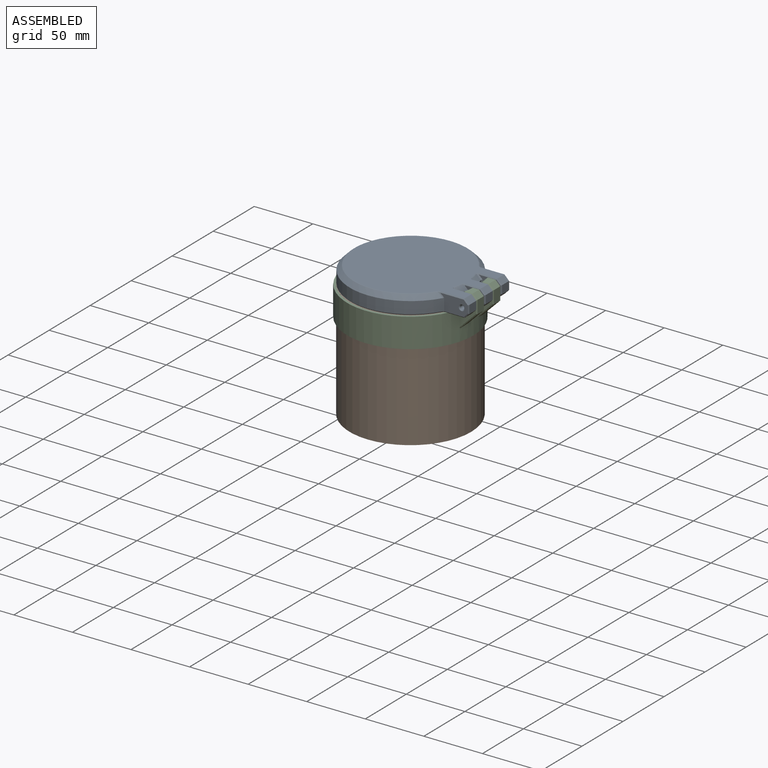
[diagram: assembled view]
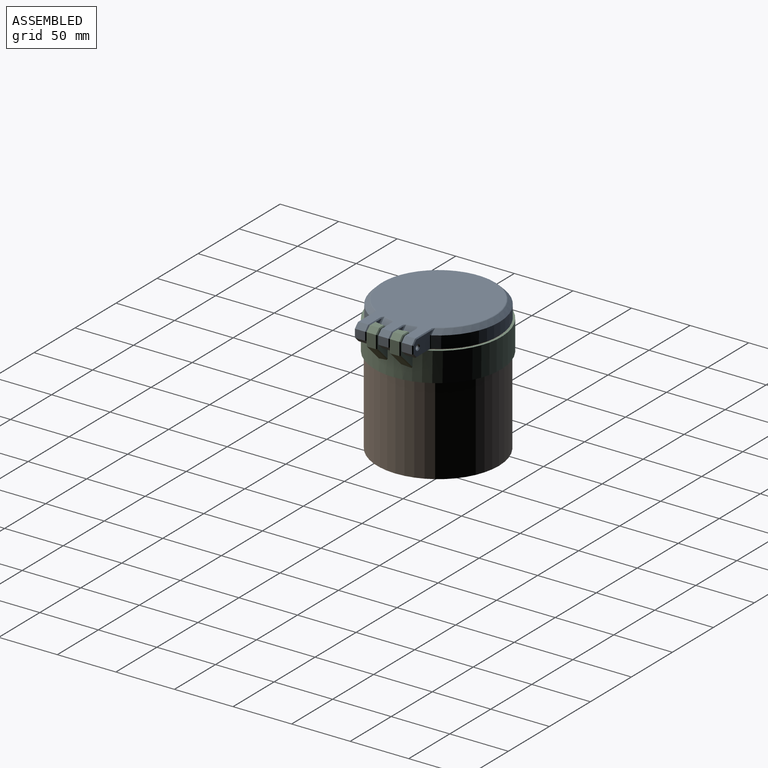
[diagram: assembled view, second angle]
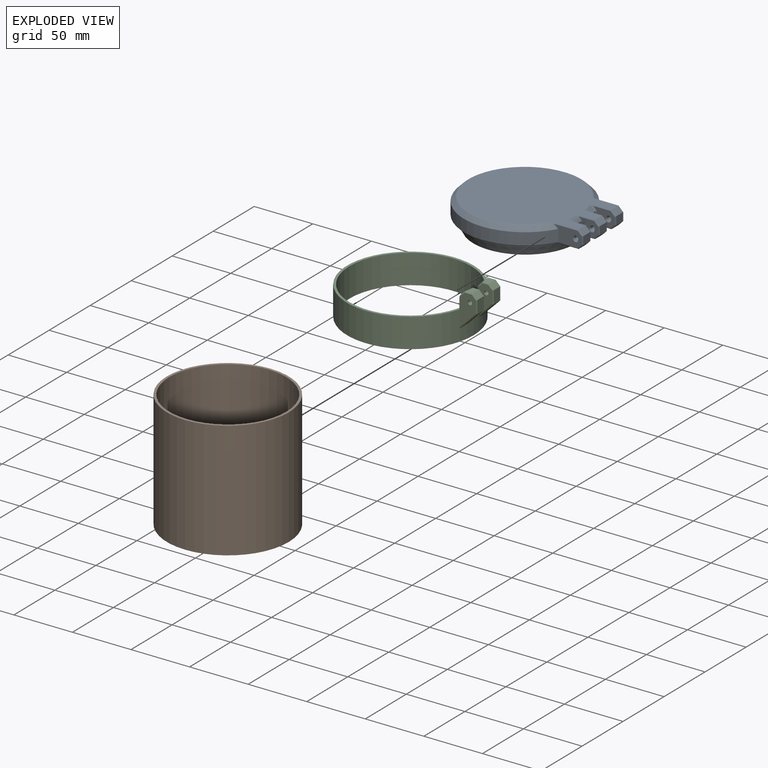
[diagram: exploded view]
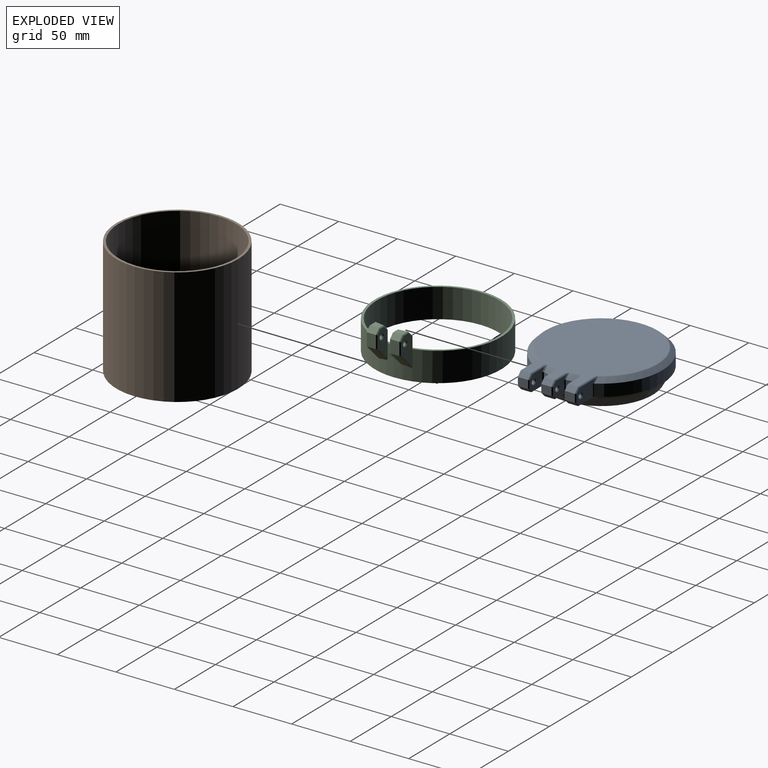
[diagram: exploded view, second angle]
ASSEMBLY  parts=3 mates=2
PART A: 95 faces, bbox 119.1x104.1x26 mm
  f0: cylinder r=52mm len=10.28mm, axis (0,0,-1), area 87.6mm2, adj f26,f60,f63,f64,f68
  f1: cylinder r=52mm len=104mm, axis (0,0,-1), area 2805.3mm2, adj f27,f79,f80,f83,f84,f88
  f2: cylinder r=52mm len=10.28mm, axis (0,0,-1), area 87.6mm2, adj f25,f39,f43,f44,f48
  f3: cylinder r=49mm len=98mm, axis (0,0,1), area 412.5mm2, adj f6,f28
  f4: plane 88x88mm, normal (0,0,-1), area 6082.1mm2, adj f28
  f5: plane 110.69x95.38mm, normal (0,0,1), area 7621.1mm2, adj f22,f23,f24,f30,f31,f32,f35,f36
  f6: plane 114.25x102.5mm, normal (0,0,-1), area 1085.4mm2, adj f3,f19,f20,f21,f42,f45,f46,f47
  f7: plane 18.52x13.5mm, normal (0,-1,0), area 180.1mm2, adj f32,f33,f37,f40,f41,f44,f45,f92
  f8: plane 8.5x7mm, normal (1,0,0), area 59.5mm2, adj f19,f22,f37,f74
  f9: plane 23.69x13.58mm, normal (0,1,0), area 244.7mm2, adj f69,f70,f74,f78,f79,f82,f83,f91
  f10: plane 23.69x13.58mm, normal (0,-1,0), area 244.7mm2, adj f72,f73,f77,f80,f81,f84,f85,f94
  f11: plane 8.5x7mm, normal (1,0,0), area 59.5mm2, adj f21,f24,f54,f77
  f12: plane 18.52x13.5mm, normal (0,1,0), area 180.1mm2, adj f49,f50,f54,f58,f59,f62,f63,f89
  f13: plane 16.77x13.5mm, normal (0,1,0), area 157.7mm2, adj f29,f30,f34,f38,f39,f42,f43,f90
  f14: plane 16.77x13.5mm, normal (0,-1,0), area 157.7mm2, adj f52,f53,f57,f60,f61,f64,f65,f93
  f15: plane 8.5x7mm, normal (1,0,0), area 59.5mm2, adj f20,f23,f34,f57
  f16: cylinder r=1.8mm len=8.5mm, axis (0,1,0), area 96.1mm2, adj f90,f93
  f17: cylinder r=1.8mm len=8.5mm, axis (0,1,0), area 96.1mm2, adj f89,f94
  f18: cylinder r=1.8mm len=8.5mm, axis (0,1,0), area 96.1mm2, adj f91,f92
  f19: plane 8.5x4mm, normal (0.71,0,-0.71), area 48.1mm2, adj f6,f8,f41,f78
  f20: plane 8.5x4mm, normal (0.71,0,-0.71), area 48.1mm2, adj f6,f15,f38,f61
  f21: plane 8.5x4mm, normal (0.71,0,-0.71), area 48.1mm2, adj f6,f11,f58,f81
  f22: plane 8.5x4mm, normal (0.71,0,0.71), area 48.1mm2, adj f5,f8,f33,f69
  f23: plane 8.5x4mm, normal (0.71,0,0.71), area 48.1mm2, adj f5,f15,f29,f53
  f24: plane 8.5x4mm, normal (0.71,0,0.71), area 48.1mm2, adj f5,f11,f49,f73
  f25: cone r=48mm half-angle=45deg, axis (0,0,-1), area 45.9mm2, adj f2,f31,f39,f40,f44
  f26: cone r=48mm half-angle=45deg, axis (0,0,-1), area 45.9mm2, adj f0,f51,f59,f60,f63
  f27: cone r=48mm half-angle=45deg, axis (0,0,-1), area 1397.1mm2, adj f1,f71,f79,f80
  f28: cone r=49mm half-angle=30deg, axis (0,0,1), area 2921.7mm2, adj f3,f4
  f29: plane 4.31x4.31mm, normal (0.5,0.71,0.5), area 5.7mm2, adj f13,f23,f30,f34
  f30: plane 13.52x0.75mm, normal (0,0.71,0.71), area 14.2mm2, adj f5,f13,f29,f35
  f31: cone r=47.69mm half-angle=67.5deg, axis (0,0,-1), area 4.9mm2, adj f5,f25,f35,f36
  f32: plane 15.27x0.75mm, normal (0,-0.71,0.71), area 16mm2, adj f5,f7,f33,f36
  f33: plane 4.31x4.31mm, normal (0.5,-0.71,0.5), area 5.7mm2, adj f7,f22,f32,f37
  f34: plane 7x0.75mm, normal (0.71,0.71,0), area 7.1mm2, adj f13,f15,f29,f38
  f35: bspline ~2.12x1.44mm, area 1.5mm2, adj f5,f30,f31,f39
  f36: bspline ~2.12x1.81mm, area 1.4mm2, adj f5,f31,f32,f40
  f37: plane 7x0.75mm, normal (0.71,-0.71,0), area 7.1mm2, adj f7,f8,f33,f41
  f38: plane 4.31x4.31mm, normal (0.5,0.71,-0.5), area 5.7mm2, adj f13,f20,f34,f42
  f39: bspline ~5.16x5.13mm, area 4.8mm2, adj f2,f13,f25,f35,f43
  f40: bspline ~5.51x5.33mm, area 5.7mm2, adj f7,f25,f36,f44
  f41: plane 4.31x4.31mm, normal (0.5,-0.71,-0.5), area 5.7mm2, adj f7,f19,f37,f45
  f42: plane 10.56x0.75mm, normal (0,0.71,-0.71), area 11mm2, adj f6,f13,f38,f46
  f43: plane 10.56x0.75mm, normal (0.67,0.74,0), area 10.4mm2, adj f2,f13,f39,f46
  f44: plane 10.56x0.95mm, normal (0.8,-0.6,0), area 12.4mm2, adj f2,f7,f25,f40,f47
  f45: plane 12.21x0.75mm, normal (0,-0.71,-0.71), area 12.8mm2, adj f6,f7,f41,f47
  f46: plane 1.49x1.42mm, normal (0.54,0.6,-0.6), area 1.4mm2, adj f6,f42,f43,f48
  f47: plane 1.91x1.44mm, normal (0.68,-0.52,-0.52), area 1.6mm2, adj f6,f44,f45,f48
  f48: cone r=52mm half-angle=45deg, axis (0,0,1), area 9mm2, adj f2,f6,f46,f47
  f49: plane 4.31x4.31mm, normal (0.5,0.71,0.5), area 5.7mm2, adj f12,f24,f50,f54
  f50: plane 15.27x0.75mm, normal (0,0.71,0.71), area 16mm2, adj f5,f12,f49,f55
  f51: cone r=47.69mm half-angle=67.5deg, axis (0,0,-1), area 4.9mm2, adj f5,f26,f55,f56
  f52: plane 13.52x0.75mm, normal (0,-0.71,0.71), area 14.2mm2, adj f5,f14,f53,f56
  f53: plane 4.31x4.31mm, normal (0.5,-0.71,0.5), area 5.7mm2, adj f14,f23,f52,f57
  f54: plane 7x0.75mm, normal (0.71,0.71,0), area 7.1mm2, adj f11,f12,f49,f58
  f55: bspline ~2.12x1.81mm, area 1.4mm2, adj f5,f50,f51,f59
  f56: bspline ~2.12x1.44mm, area 1.5mm2, adj f5,f51,f52,f60
  f57: plane 7x0.75mm, normal (0.71,-0.71,0), area 7.1mm2, adj f14,f15,f53,f61
  f58: plane 4.31x4.31mm, normal (0.5,0.71,-0.5), area 5.7mm2, adj f12,f21,f54,f62
  f59: bspline ~5.51x5.33mm, area 5.7mm2, adj f12,f26,f55,f63
  f60: bspline ~5.16x5.13mm, area 4.8mm2, adj f0,f14,f26,f56,f64
  f61: plane 4.31x4.31mm, normal (0.5,-0.71,-0.5), area 5.7mm2, adj f14,f20,f57,f65
  f62: plane 12.21x0.75mm, normal (0,0.71,-0.71), area 12.8mm2, adj f6,f12,f58,f66
  f63: plane 10.56x0.95mm, normal (0.8,0.6,0), area 12.4mm2, adj f0,f12,f26,f59,f66
  f64: plane 10.56x0.75mm, normal (0.67,-0.74,0), area 10.4mm2, adj f0,f14,f60,f67
  f65: plane 10.56x0.75mm, normal (0,-0.71,-0.71), area 11mm2, adj f6,f14,f61,f67
  f66: plane 1.91x1.44mm, normal (0.68,0.52,-0.52), area 1.6mm2, adj f6,f62,f63,f68
  f67: plane 1.49x1.42mm, normal (0.54,-0.6,-0.6), area 1.4mm2, adj f6,f64,f65,f68
  f68: cone r=52mm half-angle=45deg, axis (0,0,1), area 9mm2, adj f0,f6,f66,f67
  f69: plane 4.31x4.31mm, normal (0.5,0.71,0.5), area 5.7mm2, adj f9,f22,f70,f74
  f70: plane 20.36x0.75mm, normal (0,0.71,0.71), area 21.4mm2, adj f5,f9,f69,f75
  f71: cone r=47.69mm half-angle=67.5deg, axis (0,0,-1), area 142.3mm2, adj f5,f27,f75,f76
  f72: plane 20.36x0.75mm, normal (0,-0.71,0.71), area 21.4mm2, adj f5,f10,f73,f76
  f73: plane 4.31x4.31mm, normal (0.5,-0.71,0.5), area 5.7mm2, adj f10,f24,f72,f77
  f74: plane 7x0.75mm, normal (0.71,0.71,0), area 7.1mm2, adj f8,f9,f69,f78
  f75: bspline ~2.14x1.22mm, area 1.5mm2, adj f5,f70,f71,f79
  f76: bspline ~2.14x1.22mm, area 1.5mm2, adj f5,f71,f72,f80
  f77: plane 7x0.75mm, normal (0.71,-0.71,0), area 7.1mm2, adj f10,f11,f73,f81
  f78: plane 4.31x4.31mm, normal (0.5,0.71,-0.5), area 5.7mm2, adj f9,f19,f74,f82
  f79: bspline ~5.66x5.01mm, area 4.3mm2, adj f1,f9,f27,f75,f83
  f80: bspline ~5.66x5.01mm, area 4.3mm2, adj f1,f10,f27,f76,f84
  f81: plane 4.31x4.31mm, normal (0.5,-0.71,-0.5), area 5.7mm2, adj f10,f21,f77,f85
  f82: plane 16.96x0.75mm, normal (0,0.71,-0.71), area 17.8mm2, adj f6,f9,f78,f86
  f83: plane 10.56x0.66mm, normal (0.51,0.86,0), area 8mm2, adj f1,f9,f79,f86
  f84: plane 10.56x0.66mm, normal (0.51,-0.86,0), area 8mm2, adj f1,f10,f80,f87
  f85: plane 16.96x0.75mm, normal (0,-0.71,-0.71), area 17.8mm2, adj f6,f10,f81,f87
  f86: plane 1.31x1.13mm, normal (0.38,0.65,-0.65), area 1.1mm2, adj f6,f82,f83,f88
  f87: plane 1.31x1.13mm, normal (0.38,-0.65,-0.65), area 1.1mm2, adj f6,f84,f85,f88
  f88: cone r=52mm half-angle=45deg, axis (0,0,1), area 288.2mm2, adj f1,f6,f86,f87
  f89: cone r=2.55mm half-angle=45deg, axis (0,1,0), area 14.5mm2, adj f12,f17
  f90: cone r=2.55mm half-angle=45deg, axis (0,1,0), area 14.5mm2, adj f13,f16
  f91: cone r=2.55mm half-angle=45deg, axis (0,1,0), area 14.5mm2, adj f9,f18
  f92: cone r=1.8mm half-angle=45deg, axis (0,-1,0), area 14.5mm2, adj f7,f18
  f93: cone r=2.55mm half-angle=45deg, axis (0,-1,0), area 14.5mm2, adj f14,f16
  f94: cone r=1.8mm half-angle=45deg, axis (0,-1,0), area 14.5mm2, adj f10,f17
PART B: 4 faces, bbox 104x104x100 mm
  f0: cylinder r=50mm len=100mm, axis (0,0,1), area 31415.9mm2, adj f2,f3
  f1: cylinder r=52mm len=104mm, axis (0,0,1), area 32672.6mm2, adj f2,f3
  f2: plane 104x104mm, normal (0,0,-1), area 640.9mm2, adj f0,f1
  f3: plane 104x104mm, normal (0,0,1), area 640.9mm2, adj f0,f1
PART C: 44 faces, bbox 121.3x108.3x40.5 mm
  f0: cylinder r=52mm len=104mm, axis (0,0,1), area 8168.1mm2, adj f2,f3
  f1: cylinder r=54mm len=108mm, axis (0,0,1), area 8219.8mm2, adj f2,f3,f5,f6,f10,f12,f38,f39
  f2: plane 108x108mm, normal (0,0,-1), area 666mm2, adj f0,f1
  f3: plane 108x108mm, normal (0,0,1), area 666mm2, adj f0,f1,f4,f9
  f4: cylinder r=54mm len=11mm, axis (0,0,-1), area 102.2mm2, adj f3,f5,f6,f17,f22,f29
  f5: plane 28.2x14.27mm, normal (0,1,0), area 263.2mm2, adj f1,f4,f21,f22,f23,f24,f25,f40
  f6: plane 26.46x12.52mm, normal (0,-1,0), area 227.4mm2, adj f1,f4,f15,f26,f27,f28,f29,f42
  f7: plane 11x7.7mm, normal (1,0,0), area 84.7mm2, adj f18,f25,f26,f38
  f8: plane 7.7x6.65mm, normal (0,0,1), area 45.5mm2, adj f17,f18,f22,f23,f28
  f9: cylinder r=54mm len=11mm, axis (0,0,-1), area 102.2mm2, adj f3,f10,f12,f16,f33,f37
  f10: plane 28.2x14.27mm, normal (0,-1,0), area 273.5mm2, adj f1,f9,f14,f34,f35,f36,f37,f43
  f11: plane 11x7.7mm, normal (1,0,0), area 84.7mm2, adj f19,f30,f34,f39
  f12: plane 26.46x12.52mm, normal (0,1,0), area 217.1mm2, adj f1,f9,f20,f30,f31,f32,f33,f41
  f13: plane 7.7x6.65mm, normal (0,0,1), area 45.5mm2, adj f16,f19,f32,f36,f37
  f14: cylinder r=1.8mm len=8.45mm, axis (0,1,0), area 95.6mm2, adj f10,f20
  f15: cylinder r=1.8mm len=8.45mm, axis (0,1,0), area 95.6mm2, adj f6,f21
  f16: cone r=54mm half-angle=45deg, axis (0,0,1), area 43.9mm2, adj f9,f13,f32,f33,f37
  f17: cone r=54mm half-angle=45deg, axis (0,0,1), area 43.9mm2, adj f4,f8,f22,f28,f29
  f18: plane 7.7x4mm, normal (0.71,0,0.71), area 43.6mm2, adj f7,f8,f24,f27
  f19: plane 7.7x4mm, normal (0.71,0,0.71), area 43.6mm2, adj f11,f13,f31,f35
  f20: cone r=1.8mm half-angle=45deg, axis (0,1,0), area 14.5mm2, adj f12,f14
  f21: cone r=2.55mm half-angle=45deg, axis (0,1,0), area 14.5mm2, adj f5,f15
  f22: bspline ~5.88x5.73mm, area 7.1mm2, adj f4,f5,f8,f17,f23
  f23: plane 6.5x0.75mm, normal (0,0.71,0.71), area 6.7mm2, adj f5,f8,f22,f24
  f24: plane 4.31x4.31mm, normal (0.5,0.71,0.5), area 5.7mm2, adj f5,f18,f23,f25
  f25: plane 11x0.75mm, normal (0.71,0.71,0), area 11.3mm2, adj f5,f7,f24,f40
  f26: plane 11x0.75mm, normal (0.71,-0.71,0), area 11.3mm2, adj f6,f7,f27,f42
  f27: plane 4.31x4.31mm, normal (0.5,-0.71,0.5), area 5.7mm2, adj f6,f18,f26,f28
  f28: plane 5.38x0.75mm, normal (0,-0.71,0.71), area 5.4mm2, adj f6,f8,f17,f27,f29
  f29: bspline ~5.49x5.46mm, area 5.9mm2, adj f4,f6,f17,f28
  f30: plane 11x0.75mm, normal (0.71,0.71,0), area 11.3mm2, adj f11,f12,f31,f41
  f31: plane 4.31x4.31mm, normal (0.5,0.71,0.5), area 5.7mm2, adj f12,f19,f30,f32
  f32: plane 5.38x0.75mm, normal (0,0.71,0.71), area 5.4mm2, adj f12,f13,f16,f31,f33
  f33: bspline ~5.49x5.46mm, area 5.9mm2, adj f9,f12,f16,f32
  f34: plane 11x0.75mm, normal (0.71,-0.71,0), area 11.3mm2, adj f10,f11,f35,f43
  f35: plane 4.31x4.31mm, normal (0.5,-0.71,0.5), area 5.7mm2, adj f10,f19,f34,f36
  f36: plane 6.5x0.75mm, normal (0,-0.71,0.71), area 6.7mm2, adj f10,f13,f35,f37
  f37: bspline ~5.88x5.73mm, area 7.1mm2, adj f9,f10,f13,f16,f36
  f38: plane 15.09x15.09mm, normal (0.71,0,-0.71), area 152.3mm2, adj f1,f7,f40,f42
  f39: plane 15.09x15.09mm, normal (0.71,0,-0.71), area 152.3mm2, adj f1,f11,f41,f43
  f40: plane 15.12x15.01mm, normal (0.5,0.71,-0.5), area 21.8mm2, adj f1,f5,f25,f38
  f41: plane 13.66x13.35mm, normal (0.5,0.71,-0.5), area 19.4mm2, adj f1,f12,f30,f39
  f42: plane 13.66x13.35mm, normal (0.5,-0.71,-0.5), area 19.4mm2, adj f1,f6,f26,f38
  f43: plane 15.12x15.01mm, normal (0.5,-0.71,-0.5), area 21.8mm2, adj f1,f10,f34,f39
PLACE A rot(axis=(0,1,0),0deg) t=(-18.49,-32.56,16.57)mm
PLACE B t=(-18.49,-32.96,16.57)mm fixed
PLACE C t=(-18.49,-32.96,16.57)mm
MATE fastened B.f0 <-> C.f0  axis (0,0,1) through (-18.49,-32.96,16.57)mm
MATE revolute A.f16 <-> C.f14  axis (0,1,0) through (42.51,-47.56,24.07)mm
